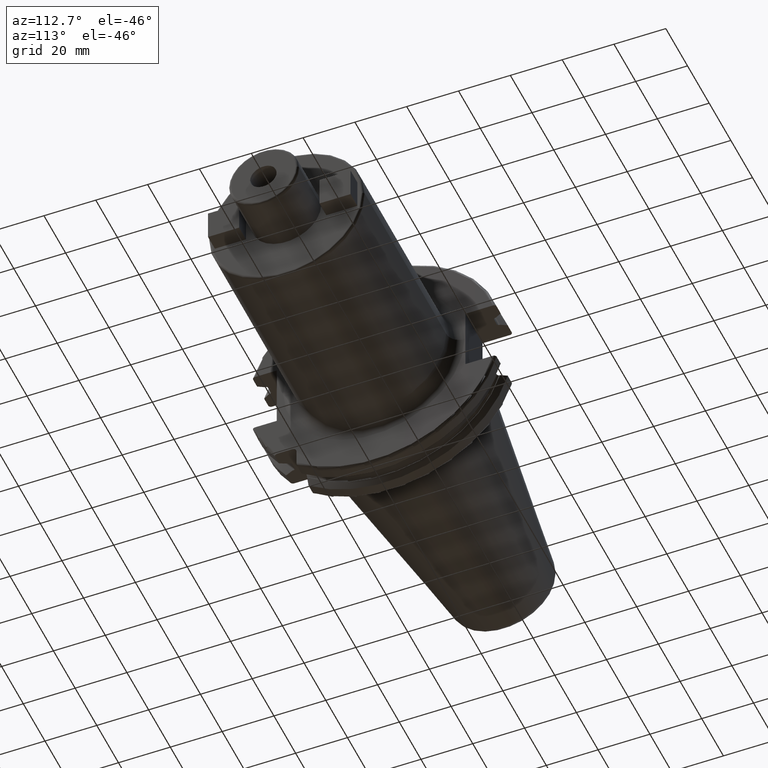
[diagram: clean part render]
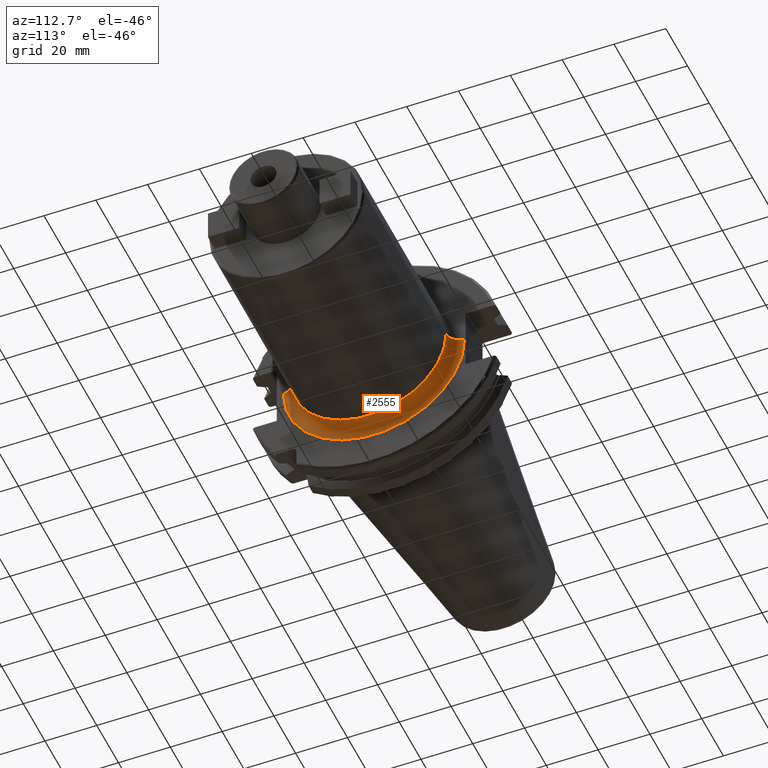
[diagram: same view with one face highlighted and labeled with its STEP entity id]
A machine part, auxiliary view. The second image highlights one B-rep face of the part: STEP entity #2555.
In plain terms, the highlighted toroidal blend (fillet) surface has major radius 35 mm and minor (blend) radius 5 mm.
Its self-contained STEP definition (entity closure, byte-faithful):
#158=CARTESIAN_POINT('',(1.905E1,0.E0,0.E0));
#159=DIRECTION('',(1.E0,0.E0,0.E0));
#160=DIRECTION('',(0.E0,-1.E0,0.E0));
#161=AXIS2_PLACEMENT_3D('',#158,#159,#160);
#896=CARTESIAN_POINT('',(2.405E1,-3.5E1,7.326639295258E-13));
#897=DIRECTION('',(0.E0,-2.093290818461E-14,-1.E0));
#898=DIRECTION('',(-1.E0,1.847411112976E-14,0.E0));
#899=AXIS2_PLACEMENT_3D('',#896,#897,#898);
#901=CARTESIAN_POINT('',(2.405E1,3.5E1,-7.361056209021E-13));
#902=DIRECTION('',(0.E0,2.103092006100E-14,1.E0));
#903=DIRECTION('',(-1.E0,-1.847411112976E-14,0.E0));
#904=AXIS2_PLACEMENT_3D('',#901,#902,#903);
#935=CARTESIAN_POINT('',(2.405E1,0.E0,0.E0));
#936=DIRECTION('',(1.E0,0.E0,0.E0));
#937=DIRECTION('',(0.E0,-1.E0,0.E0));
#938=AXIS2_PLACEMENT_3D('',#935,#936,#937);
#1570=CARTESIAN_POINT('',(1.905E1,-3.5E1,0.E0));
#1571=CARTESIAN_POINT('',(1.905E1,3.5E1,0.E0));
#1572=VERTEX_POINT('',#1570);
#1573=VERTEX_POINT('',#1571);
#1574=CARTESIAN_POINT('',(2.405E1,-3.E1,0.E0));
#1575=CARTESIAN_POINT('',(2.405E1,3.E1,0.E0));
#1576=VERTEX_POINT('',#1574);
#1577=VERTEX_POINT('',#1575);
#2541=CARTESIAN_POINT('',(2.405E1,0.E0,0.E0));
#2542=DIRECTION('',(1.E0,0.E0,0.E0));
#2543=DIRECTION('',(0.E0,-9.999868641411E-1,5.125577556928E-3));
#2544=AXIS2_PLACEMENT_3D('',#2541,#2542,#2543);
#2545=TOROIDAL_SURFACE('',#2544,3.5E1,5.E0);
#2546=ORIENTED_EDGE('',*,*,#1834,.F.);
#2548=ORIENTED_EDGE('',*,*,#2547,.T.);
#2550=ORIENTED_EDGE('',*,*,#2549,.T.);
#2552=ORIENTED_EDGE('',*,*,#2551,.F.);
#2553=EDGE_LOOP('',(#2546,#2548,#2550,#2552));
#2554=FACE_OUTER_BOUND('',#2553,.F.);
#2555=ADVANCED_FACE('',(#2554),#2545,.F.);
#162=CIRCLE('',#161,3.5E1);
#900=CIRCLE('',#899,5.E0);
#905=CIRCLE('',#904,5.E0);
#939=CIRCLE('',#938,3.E1);
#1834=EDGE_CURVE('',#1572,#1573,#162,.T.);
#2547=EDGE_CURVE('',#1572,#1576,#900,.T.);
#2549=EDGE_CURVE('',#1576,#1577,#939,.T.);
#2551=EDGE_CURVE('',#1573,#1577,#905,.T.);